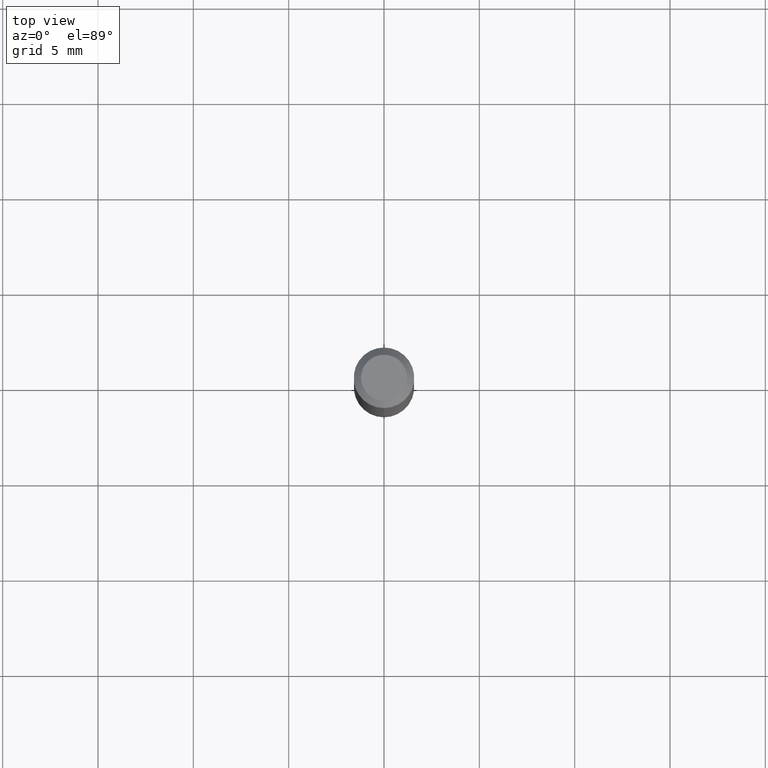
[diagram: clean part render]
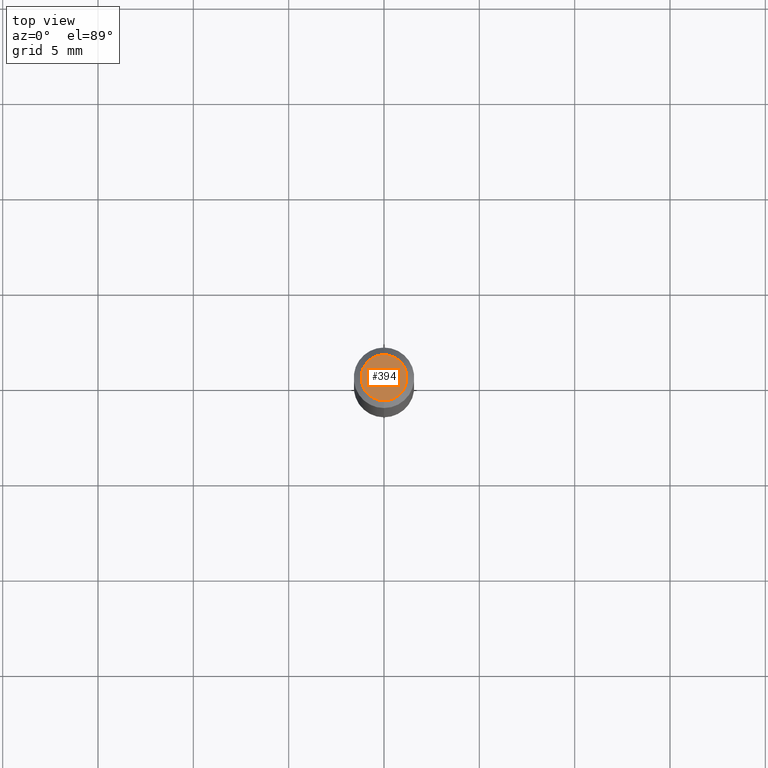
[diagram: same view with one face highlighted and labeled with its STEP entity id]
A machine part, top view. The second image highlights one B-rep face of the part: STEP entity #394.
In plain terms, the highlighted planar face has unit normal (0, -0, -1).
Its self-contained STEP definition (entity closure, byte-faithful):
#15 = DIRECTION ( 'NONE',  ( -2.445440204151626769E-29, 3.491522298583058262E-15, 1.000000000000000000 ) ) ;
#45 = DIRECTION ( 'NONE',  ( 2.445440204151626209E-29, -3.491522298583058656E-15, -1.000000000000000000 ) ) ;
#52 = DIRECTION ( 'NONE',  ( 6.982962677686265922E-15, 1.000000000000000000, -3.491522298583058656E-15 ) ) ;
#57 = DIRECTION ( 'NONE',  ( -2.445440204151626769E-29, 3.491522298583058262E-15, 1.000000000000000000 ) ) ;
#101 = CIRCLE ( 'NONE', #327, 0.04749999999999999362 ) ;
#107 = EDGE_CURVE ( 'NONE', #197, #518, #208, .T. ) ;
#134 = EDGE_CURVE ( 'NONE', #518, #197, #101, .T. ) ;
#147 = AXIS2_PLACEMENT_3D ( 'NONE', #351, #45, #52 ) ;
#168 = FACE_OUTER_BOUND ( 'NONE', #282, .T. ) ;
#190 = DIRECTION ( 'NONE',  ( -6.982962677686266711E-15, -1.000000000000000000, 3.491522298583058262E-15 ) ) ;
#197 = VERTEX_POINT ( 'NONE', #290 ) ;
#208 = CIRCLE ( 'NONE', #320, 0.04749999999999999362 ) ;
#216 = CARTESIAN_POINT ( 'NONE',  ( 3.840629472727447874E-16, 0.04749999999999999362, -2.485923956665947374E-16 ) ) ;
#264 = ORIENTED_EDGE ( 'NONE', *, *, #134, .T. ) ;
#271 = DIRECTION ( 'NONE',  ( -6.982962677686266711E-15, -1.000000000000000000, 3.491522298583058262E-15 ) ) ;
#282 = EDGE_LOOP ( 'NONE', ( #264, #377 ) ) ;
#290 = CARTESIAN_POINT ( 'NONE',  ( -3.773273898774340269E-16, -0.04749999999999999362, 8.310222269879576198E-17 ) ) ;
#320 = AXIS2_PLACEMENT_3D ( 'NONE', #356, #15, #190 ) ;
#327 = AXIS2_PLACEMENT_3D ( 'NONE', #352, #57, #271 ) ;
#351 = CARTESIAN_POINT ( 'NONE',  ( 3.316907271900976096E-16, 0.04749999999999999362, 3.181684702097800109E-17 ) ) ;
#352 = CARTESIAN_POINT ( 'NONE',  ( 2.023344873123560110E-45, -2.889258963187964091E-31, -8.274508648389948771E-17 ) ) ;
#356 = CARTESIAN_POINT ( 'NONE',  ( 2.023344873123560110E-45, -2.889258963187964091E-31, -8.274508648389948771E-17 ) ) ;
#377 = ORIENTED_EDGE ( 'NONE', *, *, #107, .T. ) ;
#394 = ADVANCED_FACE ( 'NONE', ( #168 ), #514, .F. ) ;
#514 = PLANE ( 'NONE',  #147 ) ;
#518 = VERTEX_POINT ( 'NONE', #216 ) ;